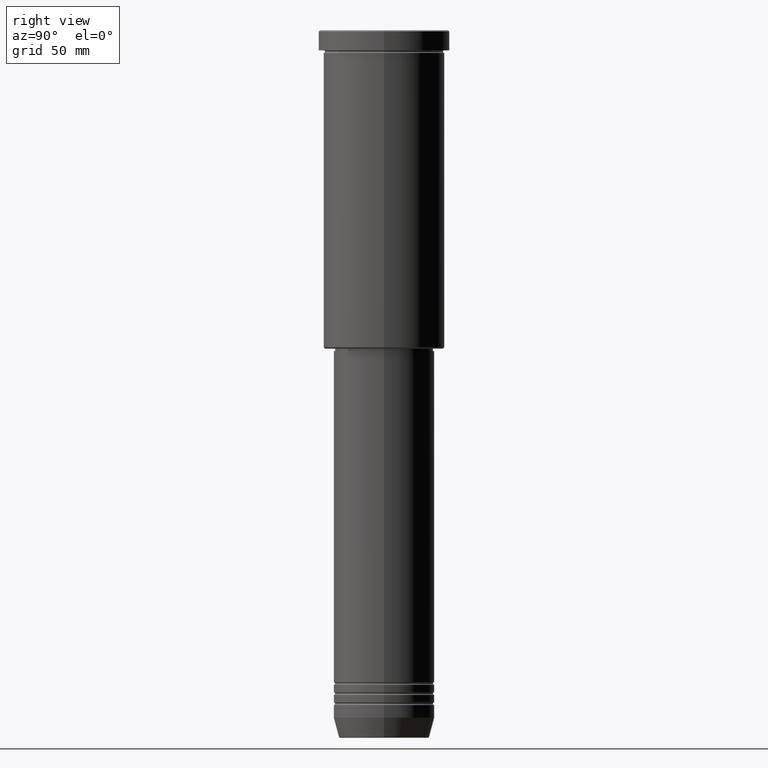
[diagram: clean part render]
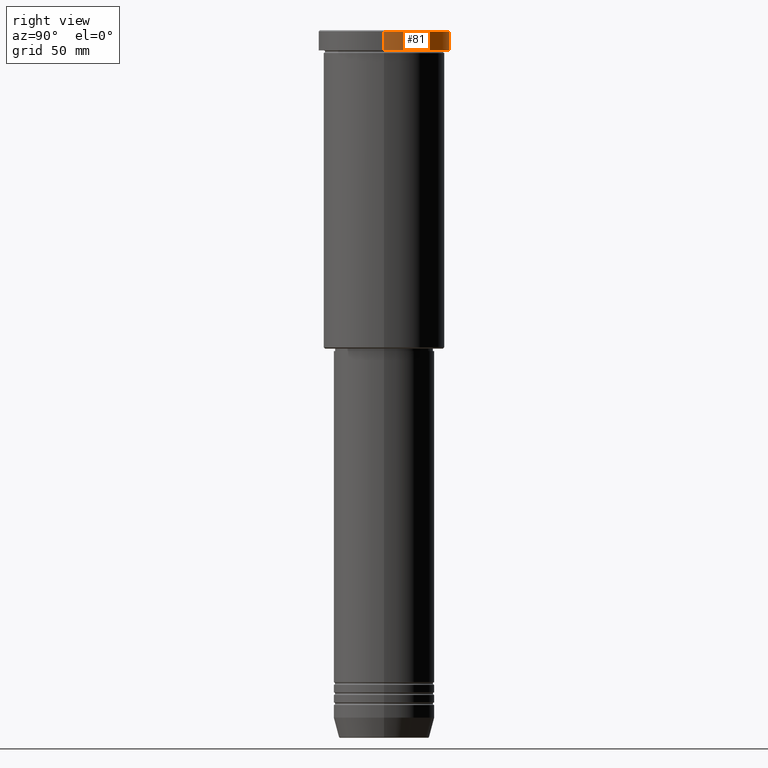
[diagram: same view with one face highlighted and labeled with its STEP entity id]
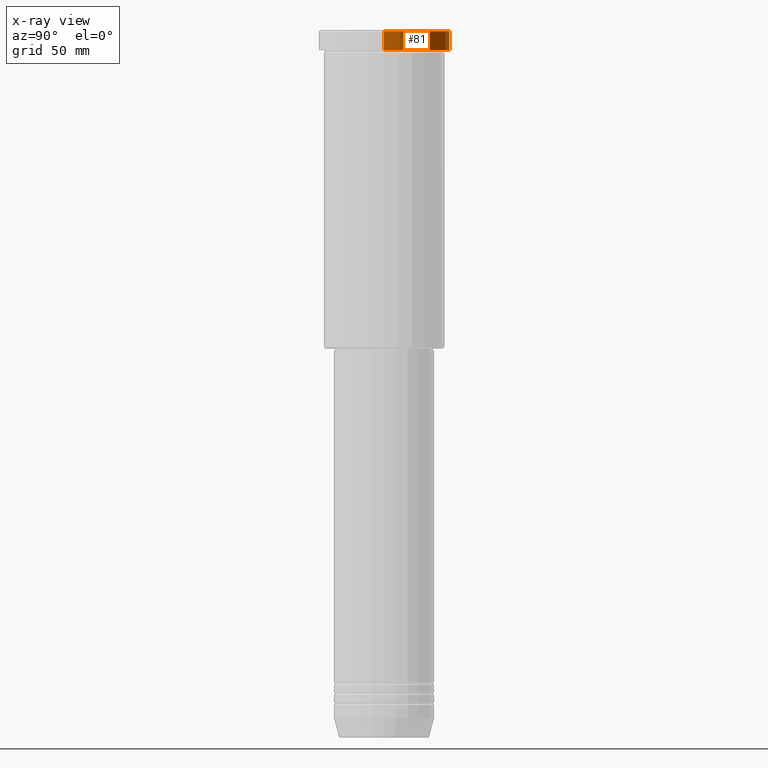
[diagram: x-ray of the same camera — body ghosted, the highlighted face saturated]
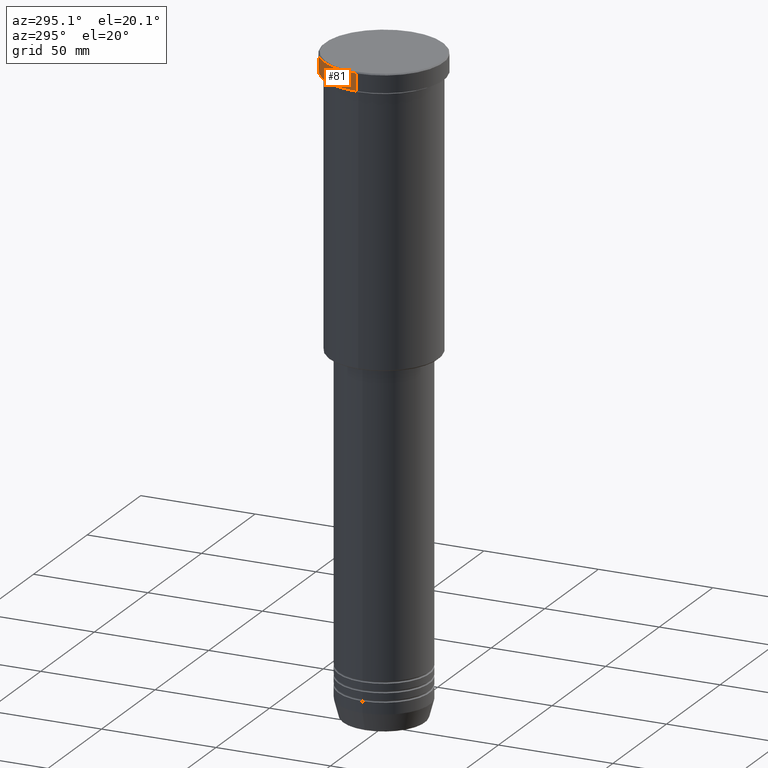
[diagram: same view with one face highlighted and labeled with its STEP entity id]
A machine part, right view. The second image highlights one B-rep face of the part: STEP entity #81.
The next image is the same camera in x-ray: the body ghosted, the highlighted face saturated — about 0% of this face is hidden behind the body in this view.
A second angle (auxiliary view) of the same face is appended — the face is thin or edge-on in the first view.
In plain terms, the highlighted cylindrical surface (partial cylindrical patch) has radius 26 mm, axis along (-0, -0, 1).
Its self-contained STEP definition (entity closure, byte-faithful):
#39 = DIRECTION ( 'NONE',  ( -0.000000000000000000, -0.000000000000000000, 1.000000000000000000 ) ) ;
#81 = ADVANCED_FACE ( 'NONE', ( #868 ), #1045, .T. ) ;
#108 = ORIENTED_EDGE ( 'NONE', *, *, #765, .T. ) ;
#119 = LINE ( 'NONE', #849, #570 ) ;
#138 = ORIENTED_EDGE ( 'NONE', *, *, #1155, .T. ) ;
#159 = CARTESIAN_POINT ( 'NONE',  ( 26.00000000000000000, 0.000000000000000000, -0.5000000000000525135 ) ) ;
#170 = EDGE_CURVE ( 'NONE', #455, #465, #698, .T. ) ;
#174 = EDGE_CURVE ( 'NONE', #878, #465, #269, .T. ) ;
#223 = CARTESIAN_POINT ( 'NONE',  ( 26.00000000000000000, 0.000000000000000000, 0.000000000000000000 ) ) ;
#239 = CARTESIAN_POINT ( 'NONE',  ( -26.00000000000000000, 3.184081677783118191E-15, -0.5000000000000525135 ) ) ;
#252 = CARTESIAN_POINT ( 'NONE',  ( 26.00000000000000000, 0.000000000000000000, -7.999999999999992895 ) ) ;
#269 = CIRCLE ( 'NONE', #1160, 26.00000000000000000 ) ;
#294 = EDGE_LOOP ( 'NONE', ( #138, #108, #841, #955 ) ) ;
#317 = DIRECTION ( 'NONE',  ( 1.000000000000000000, 0.000000000000000000, 0.000000000000000000 ) ) ;
#386 = DIRECTION ( 'NONE',  ( 1.000000000000000000, 0.000000000000000000, 0.000000000000000000 ) ) ;
#455 = VERTEX_POINT ( 'NONE', #252 ) ;
#462 = CIRCLE ( 'NONE', #861, 26.00000000000000000 ) ;
#465 = VERTEX_POINT ( 'NONE', #159 ) ;
#479 = DIRECTION ( 'NONE',  ( -0.000000000000000000, -0.000000000000000000, 1.000000000000000000 ) ) ;
#570 = VECTOR ( 'NONE', #1040, 1000.000000000000000 ) ;
#637 = CARTESIAN_POINT ( 'NONE',  ( -26.00000000000000000, 3.184081677783118191E-15, -7.999999999999992895 ) ) ;
#654 = VERTEX_POINT ( 'NONE', #637 ) ;
#698 = LINE ( 'NONE', #223, #881 ) ;
#721 = AXIS2_PLACEMENT_3D ( 'NONE', #956, #39, #317 ) ;
#765 = EDGE_CURVE ( 'NONE', #654, #878, #119, .T. ) ;
#787 = DIRECTION ( 'NONE',  ( 1.000000000000000000, 0.000000000000000000, 0.000000000000000000 ) ) ;
#841 = ORIENTED_EDGE ( 'NONE', *, *, #174, .T. ) ;
#849 = CARTESIAN_POINT ( 'NONE',  ( -26.00000000000000000, 3.184081677783118191E-15, 0.000000000000000000 ) ) ;
#861 = AXIS2_PLACEMENT_3D ( 'NONE', #921, #479, #386 ) ;
#866 = DIRECTION ( 'NONE',  ( 0.000000000000000000, 0.000000000000000000, -1.000000000000000000 ) ) ;
#868 = FACE_OUTER_BOUND ( 'NONE', #294, .T. ) ;
#878 = VERTEX_POINT ( 'NONE', #239 ) ;
#881 = VECTOR ( 'NONE', #964, 1000.000000000000000 ) ;
#921 = CARTESIAN_POINT ( 'NONE',  ( 0.000000000000000000, 0.000000000000000000, -7.999999999999992895 ) ) ;
#955 = ORIENTED_EDGE ( 'NONE', *, *, #170, .F. ) ;
#956 = CARTESIAN_POINT ( 'NONE',  ( 0.000000000000000000, 0.000000000000000000, 0.000000000000000000 ) ) ;
#964 = DIRECTION ( 'NONE',  ( -0.000000000000000000, -0.000000000000000000, 1.000000000000000000 ) ) ;
#1040 = DIRECTION ( 'NONE',  ( -0.000000000000000000, -0.000000000000000000, 1.000000000000000000 ) ) ;
#1045 = CYLINDRICAL_SURFACE ( 'NONE', #721, 26.00000000000000000 ) ;
#1047 = CARTESIAN_POINT ( 'NONE',  ( 0.000000000000000000, 0.000000000000000000, -0.5000000000000525135 ) ) ;
#1155 = EDGE_CURVE ( 'NONE', #455, #654, #462, .T. ) ;
#1160 = AXIS2_PLACEMENT_3D ( 'NONE', #1047, #866, #787 ) ;